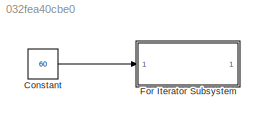
MODEL slx_032fea40cbe0
KIND model
BLOCK [Constant] Constant
  Value = 60
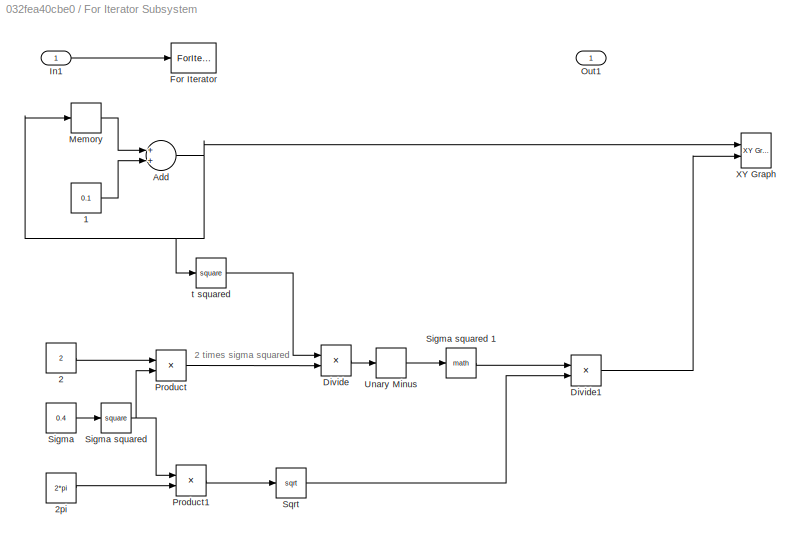
BLOCK [SubSystem] For Iterator Subsystem
  FunctionWithSeparateData = off
  MaskHideContents = off
  MinAlgLoopOccurrences = off
  Opaque = off
  Ports = [1, 1]
  PropExecContextOutsideSubsystem = off
  RTWSystemCode = Auto
  RequestExecContextInheritance = off
  TreatAsAtomicUnit = on
BLOCK [Constant] For Iterator Subsystem/1
  Value = 0.1
BLOCK [Constant] For Iterator Subsystem/2
  Value = 2
BLOCK [Constant] For Iterator Subsystem/2pi 
  Value = 2*pi
BLOCK [Sum] For Iterator Subsystem/Add
  InputSameDT = off
  OutDataTypeStr = Inherit: Inherit via internal rule
  Ports = [2, 1]
  SaturateOnIntegerOverflow = off
BLOCK [Product] For Iterator Subsystem/Divide
  InputSameDT = off
  Inputs = */
  OutDataTypeStr = Inherit: Inherit via internal rule
  Ports = [2, 1]
  RndMeth = Floor
  SaturateOnIntegerOverflow = off
BLOCK [Product] For Iterator Subsystem/Divide1
  InputSameDT = off
  Inputs = */
  OutDataTypeStr = Inherit: Inherit via internal rule
  Ports = [2, 1]
  RndMeth = Floor
  SaturateOnIntegerOverflow = off
BLOCK [ForIterator] For Iterator Subsystem/For Iterator
  IterationSource = external
  Ports = [1, 1]
  ResetStates = reset
BLOCK [Inport] For Iterator Subsystem/In1
  IconDisplay = Port number
BLOCK [Memory] For Iterator Subsystem/Memory
  InheritSampleTime = on
  X0 = -3.1
BLOCK [Outport] For Iterator Subsystem/Out1
  IconDisplay = Port number
BLOCK [Product] For Iterator Subsystem/Product
  InputSameDT = off
  OutDataTypeStr = Inherit: Inherit via internal rule
  Ports = [2, 1]
  SaturateOnIntegerOverflow = off
BLOCK [Product] For Iterator Subsystem/Product1
  InputSameDT = off
  OutDataTypeStr = Inherit: Inherit via internal rule
  Ports = [2, 1]
  SaturateOnIntegerOverflow = off
BLOCK [Constant] For Iterator Subsystem/Sigma 
  Value = 0.4
BLOCK [Math] For Iterator Subsystem/Sigma squared 
  Operator = square
  Ports = [1, 1]
BLOCK [Math] For Iterator Subsystem/Sigma squared 1
  Ports = [1, 1]
BLOCK [Sqrt] For Iterator Subsystem/Sqrt
BLOCK [UnaryMinus] For Iterator Subsystem/Unary Minus
BLOCK [Reference] For Iterator Subsystem/XY Graph  REF=simulink/Sinks/XY Graph
  Ports = [2]
  SourceBlock = simulink/Sinks/XY Graph
  SourceType = XY scope.
  st = -1
  xmax = 3
  xmin = -3
  ymax = 1
  ymin = 0
BLOCK [Math] For Iterator Subsystem/t squared 
  Operator = square
  Ports = [1, 1]
ANNOTATION For Iterator Subsystem: 2 times sigma squared
LINE Constant:1 -> For Iterator Subsystem:1
LINE For Iterator Subsystem/1:1 -> For Iterator Subsystem/Add:2
LINE For Iterator Subsystem/2:1 -> For Iterator Subsystem/Product:1
LINE For Iterator Subsystem/2pi :1 -> For Iterator Subsystem/Product1:2
NET For Iterator Subsystem/Add:1 -> For Iterator Subsystem/Memory:1, For Iterator Subsystem/XY Graph:1, For Iterator Subsystem/t squared :1
LINE For Iterator Subsystem/Divide1:1 -> For Iterator Subsystem/XY Graph:2
LINE For Iterator Subsystem/Divide:1 -> For Iterator Subsystem/Unary Minus:1
LINE For Iterator Subsystem/In1:1 -> For Iterator Subsystem/For Iterator:1
LINE For Iterator Subsystem/Memory:1 -> For Iterator Subsystem/Add:1
LINE For Iterator Subsystem/Product1:1 -> For Iterator Subsystem/Sqrt:1
LINE For Iterator Subsystem/Product:1 -> For Iterator Subsystem/Divide:2
LINE For Iterator Subsystem/Sigma :1 -> For Iterator Subsystem/Sigma squared :1
LINE For Iterator Subsystem/Sigma squared 1:1 -> For Iterator Subsystem/Divide1:1
NET For Iterator Subsystem/Sigma squared :1 -> For Iterator Subsystem/Product1:1, For Iterator Subsystem/Product:2
LINE For Iterator Subsystem/Sqrt:1 -> For Iterator Subsystem/Divide1:2
LINE For Iterator Subsystem/Unary Minus:1 -> For Iterator Subsystem/Sigma squared 1:1
LINE For Iterator Subsystem/t squared :1 -> For Iterator Subsystem/Divide:1
note: NET lines group one-source signal fan-out (src -> all destinations, sorted); 1:1 wires keep LINE
